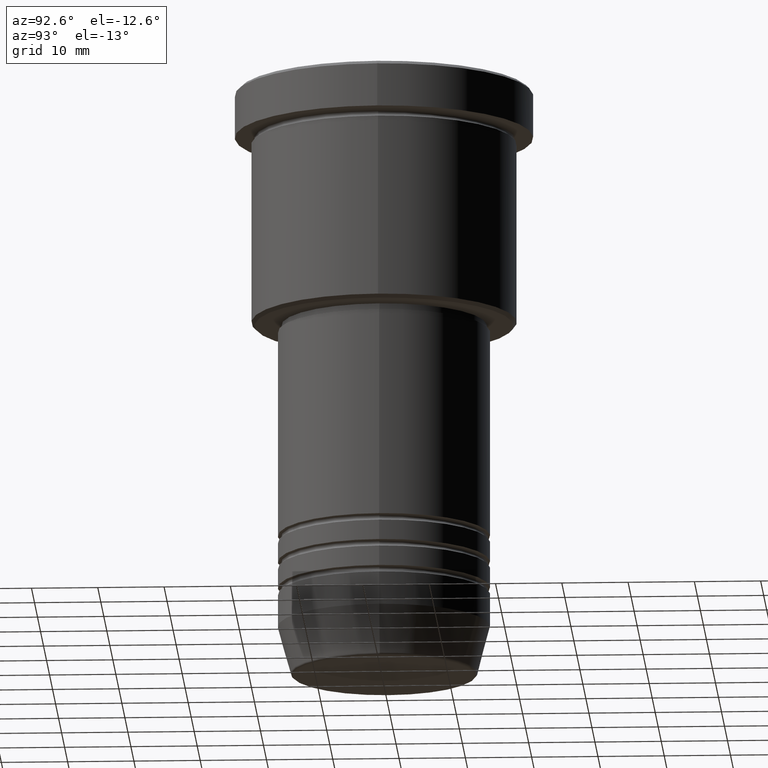
[diagram: clean part render]
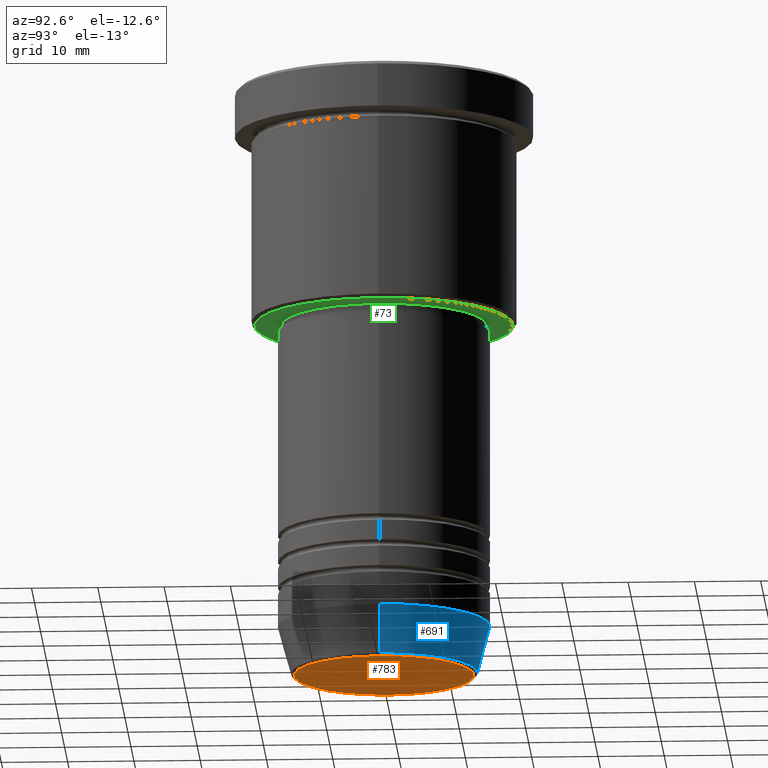
[diagram: same view with three faces highlighted in distinct colors, each labeled with its STEP entity id]
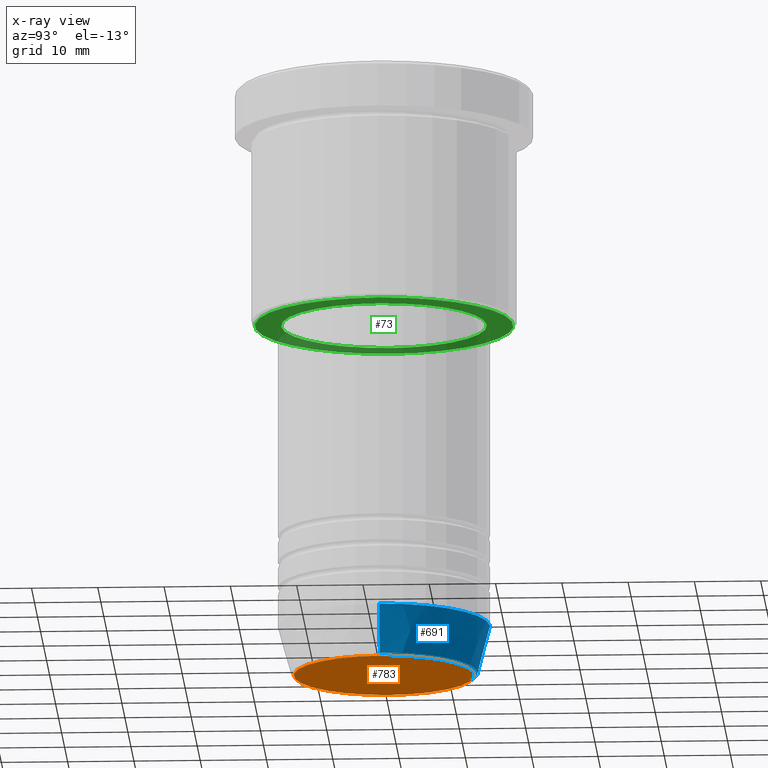
[diagram: x-ray of the same camera — body ghosted, the three highlighted faces saturated]
A machine part, auxiliary view with three faces highlighted in distinct colors.
The next image is the same camera in x-ray (body ghosted, the three faces saturated) — at least one of them is partly hidden behind the body in this view.
Their STEP definitions:

[orange] entity #783 — the highlighted planar face has unit normal (0, -0, 1).
#82 = FACE_OUTER_BOUND ( 'NONE', #548, .T. ) ;
#105 = CIRCLE ( 'NONE', #220, 13.60671756277709221 ) ;
#149 = EDGE_CURVE ( 'NONE', #850, #605, #105, .T. ) ;
#220 = AXIS2_PLACEMENT_3D ( 'NONE', #608, #1072, #1169 ) ;
#268 = DIRECTION ( 'NONE',  ( 0.000000000000000000, -0.000000000000000000, 1.000000000000000000 ) ) ;
#295 = CARTESIAN_POINT ( 'NONE',  ( 0.000000000000000000, 0.000000000000000000, -90.00000000000000000 ) ) ;
#313 = DIRECTION ( 'NONE',  ( 0.000000000000000000, 0.000000000000000000, -1.000000000000000000 ) ) ;
#374 = CIRCLE ( 'NONE', #622, 13.60671756277709221 ) ;
#418 = EDGE_CURVE ( 'NONE', #605, #850, #374, .T. ) ;
#440 = DIRECTION ( 'NONE',  ( 1.000000000000000000, 0.000000000000000000, 0.000000000000000000 ) ) ;
#448 = CARTESIAN_POINT ( 'NONE',  ( -13.60671756277709221, 1.695915260300170666E-15, -90.00000000000000000 ) ) ;
#541 = PLANE ( 'NONE',  #909 ) ;
#548 = EDGE_LOOP ( 'NONE', ( #990, #1116 ) ) ;
#596 = DIRECTION ( 'NONE',  ( 1.000000000000000000, 0.000000000000000000, 0.000000000000000000 ) ) ;
#605 = VERTEX_POINT ( 'NONE', #448 ) ;
#608 = CARTESIAN_POINT ( 'NONE',  ( 0.000000000000000000, 0.000000000000000000, -90.00000000000000000 ) ) ;
#622 = AXIS2_PLACEMENT_3D ( 'NONE', #295, #313, #596 ) ;
#630 = CARTESIAN_POINT ( 'NONE',  ( 0.000000000000000000, 0.000000000000000000, -90.00000000000000000 ) ) ;
#783 = ADVANCED_FACE ( 'NONE', ( #82 ), #541, .F. ) ;
#820 = CARTESIAN_POINT ( 'NONE',  ( 13.60671756277709221, 0.000000000000000000, -90.00000000000000000 ) ) ;
#850 = VERTEX_POINT ( 'NONE', #820 ) ;
#909 = AXIS2_PLACEMENT_3D ( 'NONE', #630, #268, #440 ) ;
#990 = ORIENTED_EDGE ( 'NONE', *, *, #149, .T. ) ;
#1072 = DIRECTION ( 'NONE',  ( 0.000000000000000000, 0.000000000000000000, -1.000000000000000000 ) ) ;
#1116 = ORIENTED_EDGE ( 'NONE', *, *, #418, .T. ) ;
#1169 = DIRECTION ( 'NONE',  ( 1.000000000000000000, 0.000000000000000000, 0.000000000000000000 ) ) ;

[blue] entity #691 — the highlighted conical surface has half-angle 15 deg.
#22 = CARTESIAN_POINT ( 'NONE',  ( 16.00000000000000000, 0.000000000000000000, -82.49999999999998579 ) ) ;
#53 = CONICAL_SURFACE ( 'NONE', #207, 16.00000000000000000, 0.2617993877991500740 ) ;
#55 = CARTESIAN_POINT ( 'NONE',  ( -14.08968047592162698, 1.842461544110201269E-15, -89.62940952255125637 ) ) ;
#56 = VERTEX_POINT ( 'NONE', #22 ) ;
#66 = CIRCLE ( 'NONE', #315, 16.00000000000000000 ) ;
#96 = LINE ( 'NONE', #672, #336 ) ;
#100 = ORIENTED_EDGE ( 'NONE', *, *, #399, .F. ) ;
#126 = DIRECTION ( 'NONE',  ( -0.000000000000000000, -0.000000000000000000, 1.000000000000000000 ) ) ;
#176 = ORIENTED_EDGE ( 'NONE', *, *, #404, .F. ) ;
#187 = ORIENTED_EDGE ( 'NONE', *, *, #921, .T. ) ;
#207 = AXIS2_PLACEMENT_3D ( 'NONE', #514, #698, #1032 ) ;
#209 = CIRCLE ( 'NONE', #745, 14.08968047592162698 ) ;
#219 = DIRECTION ( 'NONE',  ( 0.2588190451025213501, 0.000000000000000000, 0.9659258262890680902 ) ) ;
#227 = CARTESIAN_POINT ( 'NONE',  ( 0.000000000000000000, 0.000000000000000000, -82.49999999999998579 ) ) ;
#315 = AXIS2_PLACEMENT_3D ( 'NONE', #227, #587, #758 ) ;
#336 = VECTOR ( 'NONE', #849, 1000.000000000000000 ) ;
#399 = EDGE_CURVE ( 'NONE', #1092, #56, #581, .T. ) ;
#404 = EDGE_CURVE ( 'NONE', #56, #1004, #66, .T. ) ;
#412 = CARTESIAN_POINT ( 'NONE',  ( 14.08968047592162698, 0.000000000000000000, -89.62940952255125637 ) ) ;
#495 = ORIENTED_EDGE ( 'NONE', *, *, #1113, .T. ) ;
#514 = CARTESIAN_POINT ( 'NONE',  ( 0.000000000000000000, 0.000000000000000000, -82.49999999999998579 ) ) ;
#581 = LINE ( 'NONE', #1049, #1028 ) ;
#583 = CARTESIAN_POINT ( 'NONE',  ( 0.000000000000000000, 0.000000000000000000, -89.62940952255125637 ) ) ;
#587 = DIRECTION ( 'NONE',  ( -0.000000000000000000, -0.000000000000000000, 1.000000000000000000 ) ) ;
#643 = CARTESIAN_POINT ( 'NONE',  ( -16.00000000000000000, 1.959434878635765131E-15, -82.49999999999998579 ) ) ;
#672 = CARTESIAN_POINT ( 'NONE',  ( -16.00000000000000000, 1.959434878635765131E-15, -82.49999999999998579 ) ) ;
#691 = ADVANCED_FACE ( 'NONE', ( #695 ), #53, .T. ) ;
#695 = FACE_OUTER_BOUND ( 'NONE', #804, .T. ) ;
#698 = DIRECTION ( 'NONE',  ( -0.000000000000000000, -0.000000000000000000, 1.000000000000000000 ) ) ;
#745 = AXIS2_PLACEMENT_3D ( 'NONE', #583, #126, #1053 ) ;
#758 = DIRECTION ( 'NONE',  ( 1.000000000000000000, 0.000000000000000000, 0.000000000000000000 ) ) ;
#804 = EDGE_LOOP ( 'NONE', ( #495, #187, #176, #100 ) ) ;
#849 = DIRECTION ( 'NONE',  ( -0.2588190451025213501, 3.169619151431772337E-17, 0.9659258262890680902 ) ) ;
#921 = EDGE_CURVE ( 'NONE', #1084, #1004, #96, .T. ) ;
#1004 = VERTEX_POINT ( 'NONE', #643 ) ;
#1028 = VECTOR ( 'NONE', #219, 1000.000000000000000 ) ;
#1032 = DIRECTION ( 'NONE',  ( 1.000000000000000000, 0.000000000000000000, 0.000000000000000000 ) ) ;
#1049 = CARTESIAN_POINT ( 'NONE',  ( 16.00000000000000000, 0.000000000000000000, -82.49999999999998579 ) ) ;
#1053 = DIRECTION ( 'NONE',  ( 1.000000000000000000, 0.000000000000000000, 0.000000000000000000 ) ) ;
#1084 = VERTEX_POINT ( 'NONE', #55 ) ;
#1092 = VERTEX_POINT ( 'NONE', #412 ) ;
#1113 = EDGE_CURVE ( 'NONE', #1092, #1084, #209, .T. ) ;

[green] entity #73 — the highlighted planar face has unit normal (0, 0, -1).
#1 = PLANE ( 'NONE',  #425 ) ;
#16 = CIRCLE ( 'NONE', #503, 19.49999999999998934 ) ;
#73 = ADVANCED_FACE ( 'NONE', ( #1118, #1037 ), #1, .T. ) ;
#93 = ORIENTED_EDGE ( 'NONE', *, *, #727, .T. ) ;
#95 = CARTESIAN_POINT ( 'NONE',  ( 0.000000000000000000, 20.00000000000000355, -36.00000000000000000 ) ) ;
#104 = CARTESIAN_POINT ( 'NONE',  ( 0.000000000000000000, 0.000000000000000000, -36.00000000000000000 ) ) ;
#222 = AXIS2_PLACEMENT_3D ( 'NONE', #104, #661, #747 ) ;
#223 = ORIENTED_EDGE ( 'NONE', *, *, #776, .T. ) ;
#284 = EDGE_CURVE ( 'NONE', #559, #629, #1008, .T. ) ;
#425 = AXIS2_PLACEMENT_3D ( 'NONE', #95, #825, #692 ) ;
#502 = DIRECTION ( 'NONE',  ( -1.000000000000000000, 0.000000000000000000, 0.000000000000000000 ) ) ;
#503 = AXIS2_PLACEMENT_3D ( 'NONE', #1179, #1085, #520 ) ;
#520 = DIRECTION ( 'NONE',  ( -1.000000000000000000, 0.000000000000000000, 0.000000000000000000 ) ) ;
#559 = VERTEX_POINT ( 'NONE', #560 ) ;
#560 = CARTESIAN_POINT ( 'NONE',  ( -15.50000000000000000, 1.898202538678397557E-15, -36.00000000000000000 ) ) ;
#629 = VERTEX_POINT ( 'NONE', #770 ) ;
#661 = DIRECTION ( 'NONE',  ( -0.000000000000000000, -0.000000000000000000, 1.000000000000000000 ) ) ;
#674 = EDGE_LOOP ( 'NONE', ( #223, #998 ) ) ;
#677 = DIRECTION ( 'NONE',  ( 0.000000000000000000, 0.000000000000000000, -1.000000000000000000 ) ) ;
#692 = DIRECTION ( 'NONE',  ( -1.000000000000000000, 0.000000000000000000, -0.000000000000000000 ) ) ;
#711 = EDGE_LOOP ( 'NONE', ( #93, #985 ) ) ;
#712 = CARTESIAN_POINT ( 'NONE',  ( 0.000000000000000000, 0.000000000000000000, -36.00000000000000000 ) ) ;
#727 = EDGE_CURVE ( 'NONE', #1045, #1100, #16, .T. ) ;
#747 = DIRECTION ( 'NONE',  ( 1.000000000000000000, 0.000000000000000000, 0.000000000000000000 ) ) ;
#764 = AXIS2_PLACEMENT_3D ( 'NONE', #712, #1172, #1079 ) ;
#770 = CARTESIAN_POINT ( 'NONE',  ( 15.50000000000000000, 0.000000000000000000, -36.00000000000000000 ) ) ;
#776 = EDGE_CURVE ( 'NONE', #629, #559, #815, .T. ) ;
#815 = CIRCLE ( 'NONE', #764, 15.50000000000000000 ) ;
#825 = DIRECTION ( 'NONE',  ( 0.000000000000000000, 0.000000000000000000, -1.000000000000000000 ) ) ;
#860 = CARTESIAN_POINT ( 'NONE',  ( 0.000000000000000000, 0.000000000000000000, -36.00000000000000000 ) ) ;
#952 = AXIS2_PLACEMENT_3D ( 'NONE', #860, #677, #502 ) ;
#985 = ORIENTED_EDGE ( 'NONE', *, *, #1056, .T. ) ;
#998 = ORIENTED_EDGE ( 'NONE', *, *, #284, .T. ) ;
#1008 = CIRCLE ( 'NONE', #222, 15.50000000000000000 ) ;
#1013 = CIRCLE ( 'NONE', #952, 19.49999999999998934 ) ;
#1037 = FACE_BOUND ( 'NONE', #674, .T. ) ;
#1045 = VERTEX_POINT ( 'NONE', #1140 ) ;
#1056 = EDGE_CURVE ( 'NONE', #1100, #1045, #1013, .T. ) ;
#1060 = CARTESIAN_POINT ( 'NONE',  ( -19.49999999999998934, 2.418677428316021937E-15, -36.00000000000000000 ) ) ;
#1079 = DIRECTION ( 'NONE',  ( 1.000000000000000000, 0.000000000000000000, 0.000000000000000000 ) ) ;
#1085 = DIRECTION ( 'NONE',  ( 0.000000000000000000, 0.000000000000000000, -1.000000000000000000 ) ) ;
#1100 = VERTEX_POINT ( 'NONE', #1060 ) ;
#1118 = FACE_OUTER_BOUND ( 'NONE', #711, .T. ) ;
#1140 = CARTESIAN_POINT ( 'NONE',  ( 19.49999999999998934, 0.000000000000000000, -36.00000000000000000 ) ) ;
#1172 = DIRECTION ( 'NONE',  ( -0.000000000000000000, -0.000000000000000000, 1.000000000000000000 ) ) ;
#1179 = CARTESIAN_POINT ( 'NONE',  ( 0.000000000000000000, 0.000000000000000000, -36.00000000000000000 ) ) ;